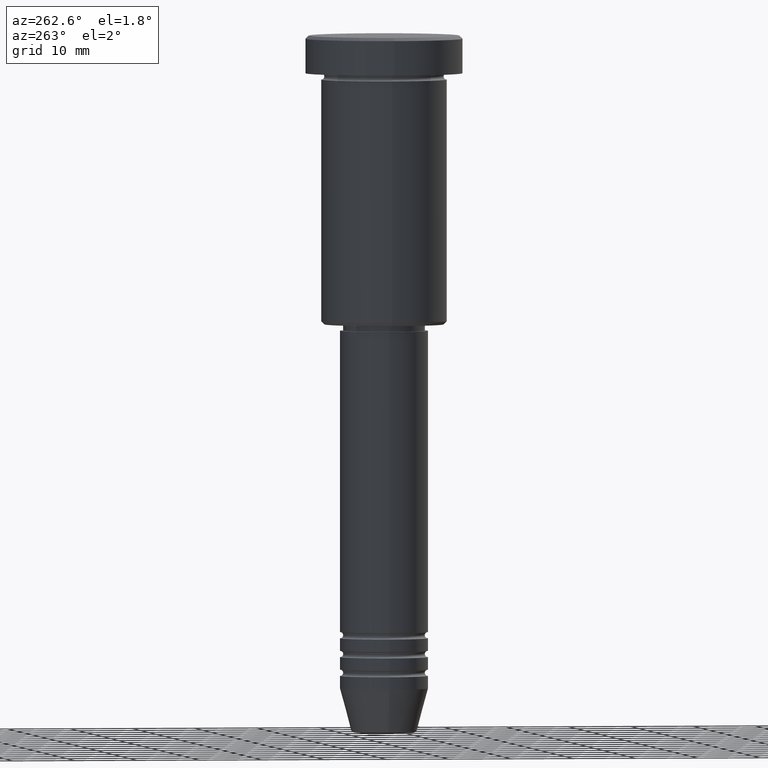
[diagram: clean part render]
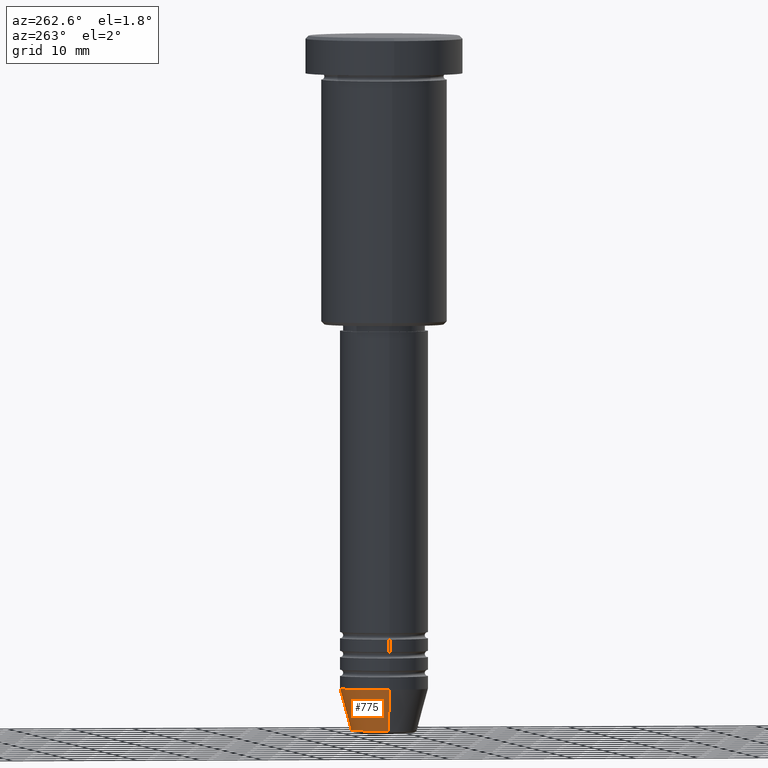
[diagram: same view with one face highlighted and labeled with its STEP entity id]
A machine part, auxiliary view. The second image highlights one B-rep face of the part: STEP entity #775.
In plain terms, the highlighted conical surface has half-angle 15 deg.
Its self-contained STEP definition (entity closure, byte-faithful):
#47 = LINE ( 'NONE', #409, #820 ) ;
#66 = EDGE_CURVE ( 'NONE', #563, #859, #47, .T. ) ;
#80 = CARTESIAN_POINT ( 'NONE',  ( 0.000000000000000000, 0.000000000000000000, -104.0000000000000142 ) ) ;
#143 = CARTESIAN_POINT ( 'NONE',  ( -5.223655072137193045, 7.484830028987060174E-16, -110.6294095225512564 ) ) ;
#148 = EDGE_CURVE ( 'NONE', #563, #1134, #1030, .T. ) ;
#167 = CARTESIAN_POINT ( 'NONE',  ( 7.000000000000000000, 0.000000000000000000, -104.0000000000000142 ) ) ;
#235 = VERTEX_POINT ( 'NONE', #657 ) ;
#305 = VECTOR ( 'NONE', #961, 1000.000000000000000 ) ;
#362 = ORIENTED_EDGE ( 'NONE', *, *, #66, .F. ) ;
#409 = CARTESIAN_POINT ( 'NONE',  ( 7.000000000000000000, 0.000000000000000000, -104.0000000000000142 ) ) ;
#447 = DIRECTION ( 'NONE',  ( -0.000000000000000000, -0.000000000000000000, 1.000000000000000000 ) ) ;
#453 = CARTESIAN_POINT ( 'NONE',  ( 0.000000000000000000, 0.000000000000000000, -110.6294095225512564 ) ) ;
#481 = ORIENTED_EDGE ( 'NONE', *, *, #1138, .F. ) ;
#528 = DIRECTION ( 'NONE',  ( 1.000000000000000000, 0.000000000000000000, 0.000000000000000000 ) ) ;
#562 = CARTESIAN_POINT ( 'NONE',  ( 5.223655072137193045, 0.000000000000000000, -110.6294095225512564 ) ) ;
#563 = VERTEX_POINT ( 'NONE', #562 ) ;
#631 = FACE_OUTER_BOUND ( 'NONE', #759, .T. ) ;
#657 = CARTESIAN_POINT ( 'NONE',  ( -7.000000000000000000, 8.572527594031473190E-16, -104.0000000000000142 ) ) ;
#700 = DIRECTION ( 'NONE',  ( -0.000000000000000000, -0.000000000000000000, 1.000000000000000000 ) ) ;
#724 = DIRECTION ( 'NONE',  ( 1.000000000000000000, 0.000000000000000000, 0.000000000000000000 ) ) ;
#759 = EDGE_LOOP ( 'NONE', ( #941, #849, #481, #362 ) ) ;
#775 = ADVANCED_FACE ( 'NONE', ( #631 ), #825, .T. ) ;
#783 = DIRECTION ( 'NONE',  ( -0.000000000000000000, -0.000000000000000000, 1.000000000000000000 ) ) ;
#820 = VECTOR ( 'NONE', #1135, 1000.000000000000000 ) ;
#825 = CONICAL_SURFACE ( 'NONE', #841, 7.000000000000000000, 0.2617993877991500740 ) ;
#841 = AXIS2_PLACEMENT_3D ( 'NONE', #80, #700, #528 ) ;
#843 = AXIS2_PLACEMENT_3D ( 'NONE', #972, #783, #874 ) ;
#849 = ORIENTED_EDGE ( 'NONE', *, *, #1112, .T. ) ;
#859 = VERTEX_POINT ( 'NONE', #167 ) ;
#874 = DIRECTION ( 'NONE',  ( 1.000000000000000000, 0.000000000000000000, 0.000000000000000000 ) ) ;
#923 = CIRCLE ( 'NONE', #843, 7.000000000000000000 ) ;
#941 = ORIENTED_EDGE ( 'NONE', *, *, #148, .T. ) ;
#961 = DIRECTION ( 'NONE',  ( -0.2588190451025213501, 3.169619151431772337E-17, 0.9659258262890680902 ) ) ;
#972 = CARTESIAN_POINT ( 'NONE',  ( 0.000000000000000000, 0.000000000000000000, -104.0000000000000142 ) ) ;
#1030 = CIRCLE ( 'NONE', #1053, 5.223655072137193045 ) ;
#1053 = AXIS2_PLACEMENT_3D ( 'NONE', #453, #447, #724 ) ;
#1112 = EDGE_CURVE ( 'NONE', #1134, #235, #1161, .T. ) ;
#1134 = VERTEX_POINT ( 'NONE', #143 ) ;
#1135 = DIRECTION ( 'NONE',  ( 0.2588190451025213501, 0.000000000000000000, 0.9659258262890680902 ) ) ;
#1138 = EDGE_CURVE ( 'NONE', #859, #235, #923, .T. ) ;
#1139 = CARTESIAN_POINT ( 'NONE',  ( -7.000000000000000000, 8.572527594031473190E-16, -104.0000000000000142 ) ) ;
#1161 = LINE ( 'NONE', #1139, #305 ) ;